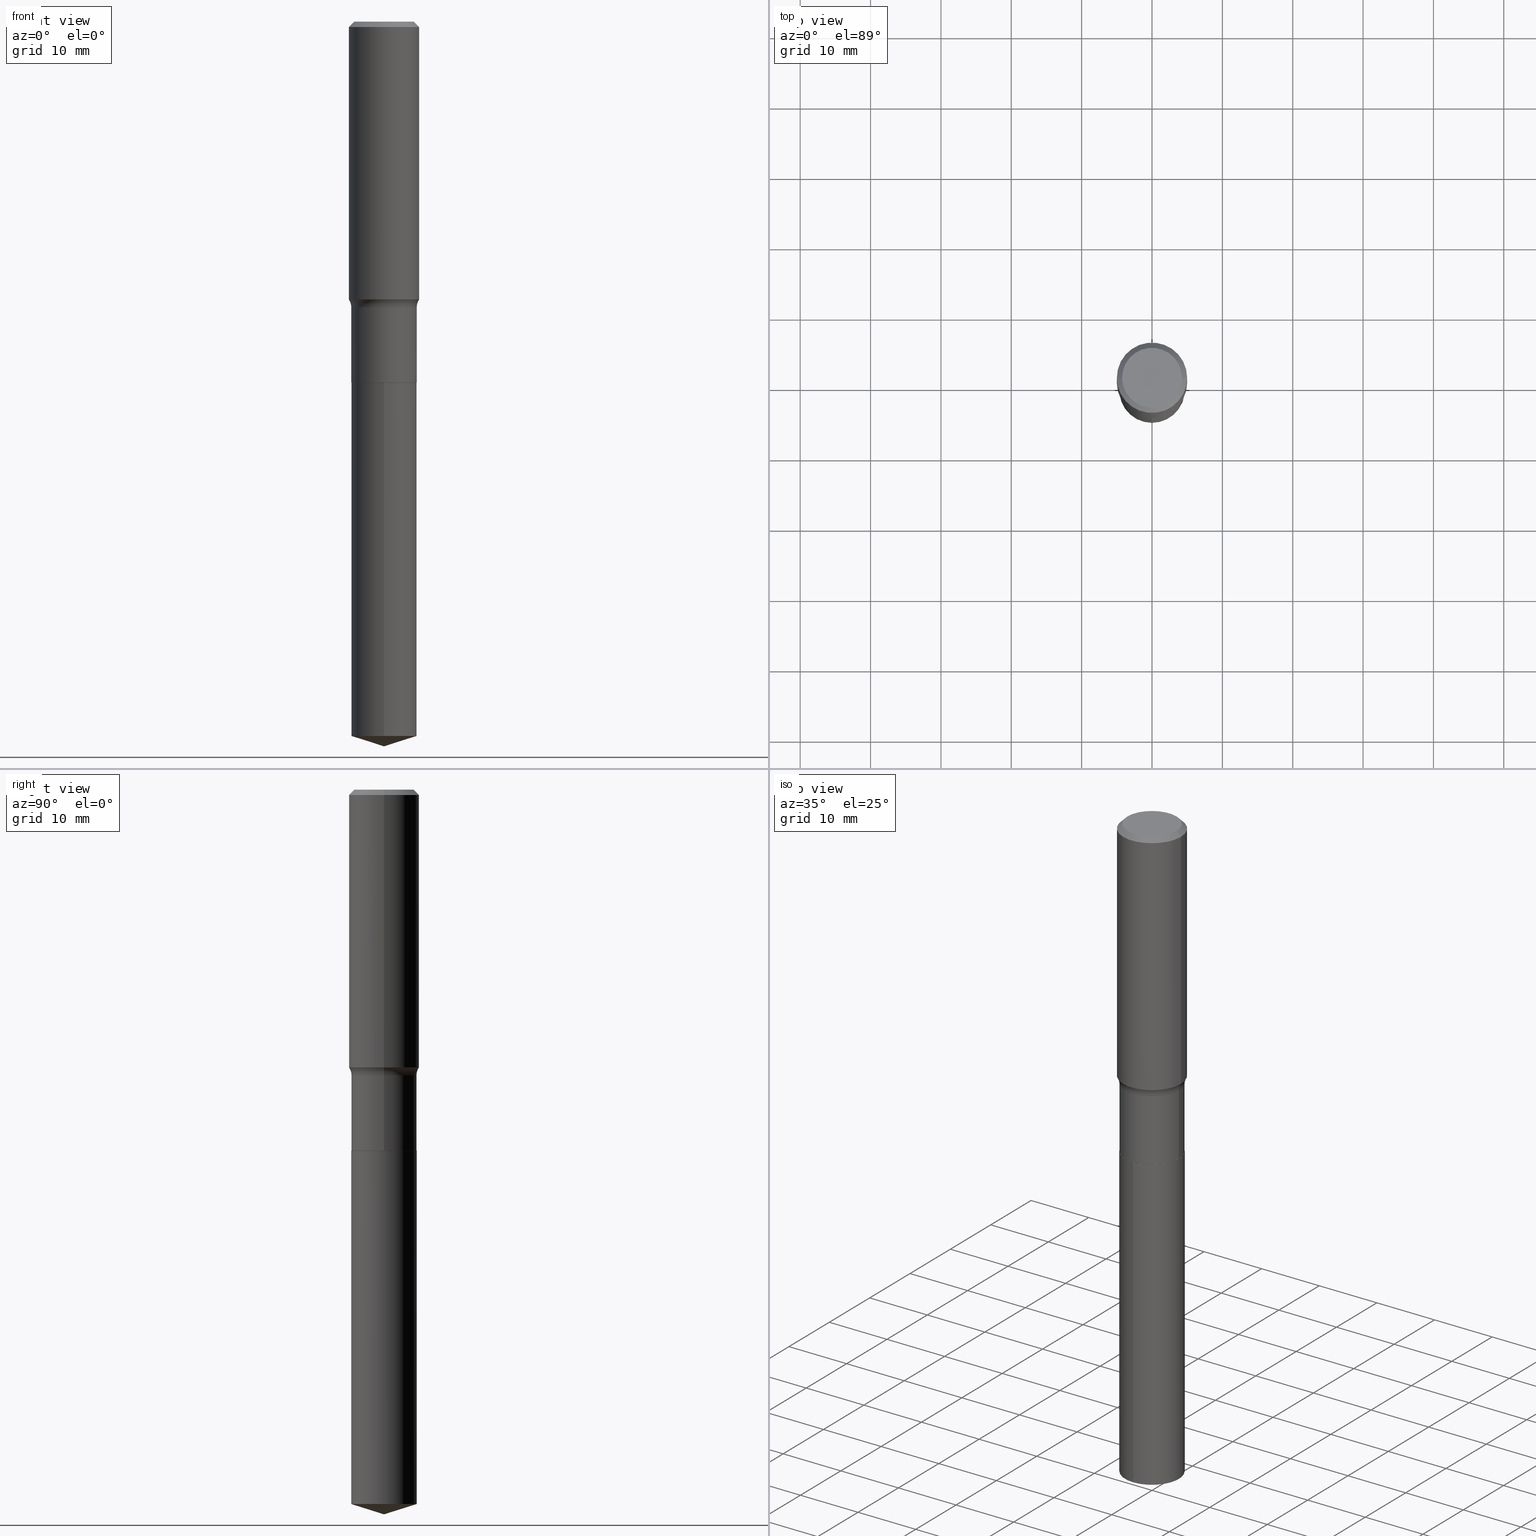
[diagram: canonical four-view strip — front | top / right | iso, engineering-drawing reading convention]
A machine part, canonical four-view strip (front | top / right | iso — engineering-drawing reading convention). The complete STEP part file that produces these views, byte-faithful:
ISO-10303-21;
HEADER;
FILE_DESCRIPTION (( 'STEP AP203' ),
    '1' );
FILE_NAME ('64167.STEP',
    '2024-04-19T15:26:06',
    ( '' ),
    ( '' ),
    'SwSTEP 2.0',
    'SolidWorks 2023',
    '' );
FILE_SCHEMA (( 'CONFIG_CONTROL_DESIGN' ));
ENDSEC;

DATA;
#1 = CARTESIAN_POINT ( 'NONE',  ( 0.000000000000000000, 0.000000000000000000, 0.000000000000000000 ) ) ;
#2 = CARTESIAN_POINT ( 'NONE',  ( 7.220858017463216492E-31, -1.030947152326917595E-16, -0.02952750000000022024 ) ) ;
#3 = EDGE_CURVE ( 'NONE', #156, #206, #22, .T. ) ;
#4 = CYLINDRICAL_SURFACE ( 'NONE', #317, 0.1830499999999999072 ) ;
#5 = CIRCLE ( 'NONE', #332, 0.1825499999999999623 ) ;
#6 = VECTOR ( 'NONE', #35, 39.37007874015748854 ) ;
#7 = FACE_OUTER_BOUND ( 'NONE', #96, .T. ) ;
#8 = ADVANCED_FACE ( 'NONE', ( #179 ), #221, .F. ) ;
#9 = FACE_OUTER_BOUND ( 'NONE', #380, .T. ) ;
#10 = ORIENTED_EDGE ( 'NONE', *, *, #298, .T. ) ;
#11 = DIRECTION ( 'NONE',  ( -2.445468806185136597E-29, 3.491481338843145583E-15, 1.000000000000000000 ) ) ;
#12 = CIRCLE ( 'NONE', #188, 0.1830499999999999905 ) ;
#13 = CC_DESIGN_APPROVAL ( #384, ( #478 ) ) ;
#14 = DIRECTION ( 'NONE',  ( 6.982962677686265922E-15, 1.000000000000000000, -3.491360137633217675E-15 ) ) ;
#15 = EDGE_LOOP ( 'NONE', ( #474, #165, #310, #342 ) ) ;
#16 = APPROVAL_STATUS ( 'not_yet_approved' ) ;
#17 = DIRECTION ( 'NONE',  ( -2.445468806185136597E-29, 3.491481338843145583E-15, 1.000000000000000000 ) ) ;
#18 = ORIENTED_EDGE ( 'NONE', *, *, #245, .F. ) ;
#19 = ADVANCED_FACE ( 'NONE', ( #407 ), #46, .T. ) ;
#20 = CARTESIAN_POINT ( 'NONE',  ( 0.1830499999999999072, -1.278231318150470470E-15, 8.925841588094455250E-30 ) ) ;
#21 = VERTEX_POINT ( 'NONE', #323 ) ;
#22 = CIRCLE ( 'NONE', #64, 0.07800000000000002764 ) ;
#23 = DIRECTION ( 'NONE',  ( 1.000000000000000000, -6.982962677686267499E-15, 0.000000000000000000 ) ) ;
#24 = APPROVAL_PERSON_ORGANIZATION ( #27, #384, #212 ) ;
#25 = ORIENTED_EDGE ( 'NONE', *, *, #196, .T. ) ;
#26 = PRODUCT ( '64167', '64167', '', ( #69 ) ) ;
#27 = PERSON_AND_ORGANIZATION ( #67, #182 ) ;
#28 = ORIENTED_EDGE ( 'NONE', *, *, #421, .T. ) ;
#29 = CARTESIAN_POINT ( 'NONE',  ( 0.1968500000000000527, -1.453583746094018101E-15, -0.02952750000000022024 ) ) ;
#30 = EDGE_LOOP ( 'NONE', ( #202, #319, #418, #391 ) ) ;
#31 = CIRCLE ( 'NONE', #286, 0.1830499999999999905 ) ;
#32 = DIRECTION ( 'NONE',  ( -1.000000000000000000, 7.105427357601001859E-15, 0.000000000000000000 ) ) ;
#33 = AXIS2_PLACEMENT_3D ( 'NONE', #238, #11, #242 ) ;
#34 = EDGE_CURVE ( 'NONE', #156, #411, #459, .T. ) ;
#35 = DIRECTION ( 'NONE',  ( 0.7071067811865454633, -7.319954787623246579E-15, -0.7071067811865493491 ) ) ;
#36 = CARTESIAN_POINT ( 'NONE',  ( 3.909326433567559047E-29, -5.581482068274652880E-15, -1.598600000000000021 ) ) ;
#37 = DIRECTION ( 'NONE',  ( -2.445553440537678294E-29, 3.491360137633217675E-15, 1.000000000000000000 ) ) ;
#38 = DIRECTION ( 'NONE',  ( 1.000000000000000000, -6.982962677686268288E-15, 4.883557194083112901E-29 ) ) ;
#39 = CIRCLE ( 'NONE', #359, 0.1968500000000001915 ) ;
#40 = LOCAL_TIME ( 11, 26, 6.000000000000000000, #466 ) ;
#41 = ADVANCED_BREP_SHAPE_REPRESENTATION ( '64167', ( #128, #132, #448 ), #47 ) ;
#42 = ADVANCED_FACE ( 'NONE', ( #149 ), #236, .T. ) ;
#43 = DIRECTION ( 'NONE',  ( 1.000000000000000000, -6.982962677686266711E-15, 4.876176775795935793E-29 ) ) ;
#44 = FACE_OUTER_BOUND ( 'NONE', #461, .T. ) ;
#45 = CARTESIAN_POINT ( 'NONE',  ( 3.909326433567559047E-29, -5.581482068274652880E-15, -1.598600000000000021 ) ) ;
#46 = CONICAL_SURFACE ( 'NONE', #367, 0.1825499999999999623, 0.7853981633975165577 ) ;
#47 =( GEOMETRIC_REPRESENTATION_CONTEXT ( 3 ) GLOBAL_UNCERTAINTY_ASSIGNED_CONTEXT ( ( #263 ) ) GLOBAL_UNIT_ASSIGNED_CONTEXT ( ( #327, #109, #249 ) ) REPRESENTATION_CONTEXT ( 'NONE', 'WORKASPACE' ) );
#48 = CARTESIAN_POINT ( 'NONE',  ( -0.1968500000000000527, -1.366251266267466202E-15, -0.02952750000000022024 ) ) ;
#49 = ORIENTED_EDGE ( 'NONE', *, *, #347, .F. ) ;
#50 = CARTESIAN_POINT ( 'NONE',  ( 0.000000000000000000, 0.000000000000000000, 0.000000000000000000 ) ) ;
#51 = CARTESIAN_POINT ( 'NONE',  ( 4.938868800971501707E-29, -7.051395711927616472E-15, -2.019600000000000062 ) ) ;
#52 = EDGE_LOOP ( 'NONE', ( #57, #134, #331 ) ) ;
#53 = CLOSED_SHELL ( 'NONE', ( #169, #404, #42, #395, #338 ) ) ;
#54 = APPROVAL_PERSON_ORGANIZATION ( #392, #389, #361 ) ;
#55 = FACE_OUTER_BOUND ( 'NONE', #344, .T. ) ;
#56 = EDGE_CURVE ( 'NONE', #127, #130, #12, .T. ) ;
#57 = ORIENTED_EDGE ( 'NONE', *, *, #196, .F. ) ;
#58 = DATE_AND_TIME ( #94, #40 ) ;
#59 = CARTESIAN_POINT ( 'NONE',  ( -8.636483868804549614E-28, 1.232970642567868093E-13, 35.31497874015747840 ) ) ;
#60 = ORIENTED_EDGE ( 'NONE', *, *, #107, .T. ) ;
#61 = LINE ( 'NONE', #270, #408 ) ;
#62 = VERTEX_POINT ( 'NONE', #70 ) ;
#63 = EDGE_CURVE ( 'NONE', #130, #127, #31, .T. ) ;
#64 = AXIS2_PLACEMENT_3D ( 'NONE', #409, #218, #253 ) ;
#65 = LENGTH_MEASURE_WITH_UNIT ( LENGTH_MEASURE( 0.02539999999999999897 ), #363 );
#66 = PRODUCT_DEFINITION_FORMATION_WITH_SPECIFIED_SOURCE ( 'ANY', '', #26, .NOT_KNOWN. ) ;
#67 = PERSON ( 'UNSPECIFIED', 'UNSPECIFIED', 'UNSPECIFIED', ('UNSPECIFIED'), ('UNSPECIFIED'), ('UNSPECIFIED') ) ;
#68 = ORIENTED_EDGE ( 'NONE', *, *, #84, .T. ) ;
#69 = MECHANICAL_CONTEXT ( 'NONE', #492, 'mechanical' ) ;
#70 = CARTESIAN_POINT ( 'NONE',  ( -0.1673224999999999851, 1.219954130253505460E-15, 4.096137381439757534E-18 ) ) ;
#71 = DIRECTION ( 'NONE',  ( -0.7071067811865454633, 2.468850131082235761E-15, -0.7071067811865493491 ) ) ;
#72 = APPROVAL_STATUS ( 'not_yet_approved' ) ;
#73 = TOROIDAL_SURFACE ( 'NONE', #325, 0.2610499999999999488, 0.07800000000000002764 ) ;
#74 = ORIENTED_EDGE ( 'NONE', *, *, #100, .T. ) ;
#75 = AXIS2_PLACEMENT_3D ( 'NONE', #59, #315, #473 ) ;
#76 = ORIENTED_EDGE ( 'NONE', *, *, #366, .F. ) ;
#77 = ORIENTED_EDGE ( 'NONE', *, *, #34, .T. ) ;
#78 = DIRECTION ( 'NONE',  ( 0.7071067811865957564, -2.468850131082761932E-15, 0.7071067811864992780 ) ) ;
#79 = CC_DESIGN_PERSON_AND_ORGANIZATION_ASSIGNMENT ( #487, #399, ( #26 ) ) ;
#80 = FACE_OUTER_BOUND ( 'NONE', #355, .T. ) ;
#81 = CC_DESIGN_APPROVAL ( #223, ( #66 ) ) ;
#82 = CARTESIAN_POINT ( 'NONE',  ( -0.1830499999999999072, 1.300648477808862731E-15, -9.004110682711601185E-30 ) ) ;
#83 = CYLINDRICAL_SURFACE ( 'NONE', #447, 0.1830499999999999905 ) ;
#84 = EDGE_CURVE ( 'NONE', #411, #303, #428, .T. ) ;
#85 = DIRECTION ( 'NONE',  ( -1.000000000000000000, 6.982962677686265922E-15, -4.876176775795935793E-29 ) ) ;
#86 = SECURITY_CLASSIFICATION ( '', '', #462 ) ;
#87 = CARTESIAN_POINT ( 'NONE',  ( 4.938868800971501707E-29, -7.051395711927616472E-15, -2.019600000000000062 ) ) ;
#88 = DIRECTION ( 'NONE',  ( -1.000000000000000000, 6.982962677686266711E-15, 0.000000000000000000 ) ) ;
#89 = ORIENTED_EDGE ( 'NONE', *, *, #90, .F. ) ;
#90 = EDGE_CURVE ( 'NONE', #437, #21, #145, .T. ) ;
#91 = DIRECTION ( 'NONE',  ( -2.445553440537678294E-29, 3.491360137633217675E-15, 1.000000000000000000 ) ) ;
#92 = EDGE_LOOP ( 'NONE', ( #472, #387, #10, #477 ) ) ;
#93 = VECTOR ( 'NONE', #305, 39.37007874015748854 ) ;
#94 = CALENDAR_DATE ( 2024, 19, 4 ) ;
#95 = DIRECTION ( 'NONE',  ( 1.000000000000000000, -6.982962677686269077E-15, 0.000000000000000000 ) ) ;
#96 = EDGE_LOOP ( 'NONE', ( #364, #49 ) ) ;
#97 = APPROVAL_ROLE ( '' ) ;
#98 = DIRECTION ( 'NONE',  ( -2.445468806185136597E-29, 3.491481338843145583E-15, 1.000000000000000000 ) ) ;
#99 = EDGE_LOOP ( 'NONE', ( #141, #68, #28, #120 ) ) ;
#100 = EDGE_CURVE ( 'NONE', #314, #151, #412, .T. ) ;
#101 = FACE_OUTER_BOUND ( 'NONE', #275, .T. ) ;
#102 = ORIENTED_EDGE ( 'NONE', *, *, #84, .F. ) ;
#103 = VECTOR ( 'NONE', #105, 39.37007874015748143 ) ;
#104 = APPLICATION_PROTOCOL_DEFINITION ( 'international standard', 'config_control_design', 1994, #492 ) ;
#105 = DIRECTION ( 'NONE',  ( -0.7071067811865957564, 7.493145998870527710E-15, 0.7071067811864992780 ) ) ;
#106 = CARTESIAN_POINT ( 'NONE',  ( 9.775646628240964967E-29, -1.395655387400157746E-14, -3.997384556695702695 ) ) ;
#107 = EDGE_CURVE ( 'NONE', #411, #156, #39, .T. ) ;
#108 = DIRECTION ( 'NONE',  ( -6.982962677686264344E-15, -1.000000000000000000, 2.984810700534567995E-15 ) ) ;
#109 =( NAMED_UNIT ( * ) PLANE_ANGLE_UNIT ( ) SI_UNIT ( $, .RADIAN. ) );
#110 = DIRECTION ( 'NONE',  ( -6.982962677686265922E-15, -1.000000000000000000, 3.500519750498715082E-15 ) ) ;
#111 = AXIS2_PLACEMENT_3D ( 'NONE', #51, #274, #14 ) ;
#112 = ORIENTED_EDGE ( 'NONE', *, *, #441, .F. ) ;
#113 = EDGE_CURVE ( 'NONE', #62, #279, #255, .T. ) ;
#114 = DIRECTION ( 'NONE',  ( 1.000000000000000000, -6.982962677686269077E-15, 0.000000000000000000 ) ) ;
#115 = CARTESIAN_POINT ( 'NONE',  ( -5.008488096090108951E-47, 7.150793614331948590E-33, 2.048068690724054183E-18 ) ) ;
#116 = VECTOR ( 'NONE', #382, 39.37007874015748143 ) ;
#117 = AXIS2_PLACEMENT_3D ( 'NONE', #422, #393, #203 ) ;
#118 = EDGE_CURVE ( 'NONE', #243, #183, #254, .T. ) ;
#119 = DIRECTION ( 'NONE',  ( 1.000000000000000000, -6.982962677686266711E-15, 4.876176775795935232E-29 ) ) ;
#120 = ORIENTED_EDGE ( 'NONE', *, *, #3, .F. ) ;
#121 = PRODUCT_RELATED_PRODUCT_CATEGORY ( 'detail', '', ( #26 ) ) ;
#122 = DIRECTION ( 'NONE',  ( -1.000000000000000000, 6.982962677686266711E-15, 0.000000000000000000 ) ) ;
#123 = DIRECTION ( 'NONE',  ( 2.445468806185136597E-29, -3.491481338843145583E-15, -1.000000000000000000 ) ) ;
#124 = VECTOR ( 'NONE', #377, 39.37007874015748143 ) ;
#125 = LINE ( 'NONE', #240, #375 ) ;
#126 = APPLICATION_CONTEXT ( 'configuration controlled 3d designs of mechanical parts and assemblies' ) ;
#127 = VERTEX_POINT ( 'NONE', #370 ) ;
#128 = MANIFOLD_SOLID_BREP ( 'Body-Move/Copy2[1]', #53 ) ;
#129 = CYLINDRICAL_SURFACE ( 'NONE', #483, 0.1830499999999999072 ) ;
#130 = VERTEX_POINT ( 'NONE', #185 ) ;
#131 = PERSON_AND_ORGANIZATION ( #67, #182 ) ;
#132 = MANIFOLD_SOLID_BREP ( 'Body-Move/Copy2[2]', #181 ) ;
#133 = LINE ( 'NONE', #20, #368 ) ;
#134 = ORIENTED_EDGE ( 'NONE', *, *, #378, .T. ) ;
#135 = AXIS2_PLACEMENT_3D ( 'NONE', #296, #371, #216 ) ;
#136 = AXIS2_PLACEMENT_3D ( 'NONE', #345, #98, #396 ) ;
#137 = ADVANCED_FACE ( 'NONE', ( #488 ), #294, .T. ) ;
#138 = DIRECTION ( 'NONE',  ( 2.445468806185136597E-29, -3.491481338843145583E-15, -1.000000000000000000 ) ) ;
#139 = ORIENTED_EDGE ( 'NONE', *, *, #429, .F. ) ;
#140 = DIRECTION ( 'NONE',  ( 1.000000000000000000, -6.982962677686267499E-15, 4.876294436782262290E-29 ) ) ;
#141 = ORIENTED_EDGE ( 'NONE', *, *, #107, .F. ) ;
#142 = DATE_TIME_ROLE ( 'creation_date' ) ;
#143 = DIRECTION ( 'NONE',  ( -2.445553440537678294E-29, 3.491360137633217675E-15, 1.000000000000000000 ) ) ;
#144 = CIRCLE ( 'NONE', #259, 0.1830499999999999350 ) ;
#145 = LINE ( 'NONE', #489, #103 ) ;
#146 = CC_DESIGN_PERSON_AND_ORGANIZATION_ASSIGNMENT ( #131, #166, ( #86 ) ) ;
#147 = CARTESIAN_POINT ( 'NONE',  ( -0.1968500000000000527, 1.271501487869850317E-15, -0.02952750000000022024 ) ) ;
#148 = COORDINATED_UNIVERSAL_TIME_OFFSET ( 5, 0, .BEHIND. ) ;
#149 = FACE_OUTER_BOUND ( 'NONE', #177, .T. ) ;
#150 = ADVANCED_FACE ( 'NONE', ( #335 ), #4, .T. ) ;
#151 = VERTEX_POINT ( 'NONE', #152 ) ;
#152 = CARTESIAN_POINT ( 'NONE',  ( 0.1830499999999999350, -8.327881289408665635E-15, -2.019099999999999895 ) ) ;
#153 = DIRECTION ( 'NONE',  ( 1.000000000000000000, -6.982962677686266711E-15, 0.000000000000000000 ) ) ;
#154 = DIRECTION ( 'NONE',  ( -2.445468806185136597E-29, 3.491481338843145583E-15, 1.000000000000000000 ) ) ;
#155 = AXIS2_PLACEMENT_3D ( 'NONE', #460, #17, #95 ) ;
#156 = VERTEX_POINT ( 'NONE', #417 ) ;
#157 = DIRECTION ( 'NONE',  ( -2.445553440537678294E-29, 3.491360137633217675E-15, 1.000000000000000000 ) ) ;
#158 = DIRECTION ( 'NONE',  ( -2.445468806185136597E-29, 3.491481338843145583E-15, 1.000000000000000000 ) ) ;
#159 = ORIENTED_EDGE ( 'NONE', *, *, #410, .F. ) ;
#160 = DIRECTION ( 'NONE',  ( -2.445468806185136597E-29, 3.491481338843145583E-15, 1.000000000000000000 ) ) ;
#161 = ADVANCED_FACE ( 'NONE', ( #9 ), #300, .T. ) ;
#162 = AXIS2_PLACEMENT_3D ( 'NONE', #222, #376, #43 ) ;
#163 = AXIS2_PLACEMENT_3D ( 'NONE', #306, #390, #140 ) ;
#164 = DIRECTION ( 'NONE',  ( -2.445468806185136597E-29, 3.491481338843145583E-15, 1.000000000000000000 ) ) ;
#165 = ORIENTED_EDGE ( 'NONE', *, *, #273, .T. ) ;
#166 = PERSON_AND_ORGANIZATION_ROLE ( 'classification_officer' ) ;
#167 = CARTESIAN_POINT ( 'NONE',  ( 0.1673224999999999851, -1.300749711163072594E-15, 4.096137381456741925E-18 ) ) ;
#168 = ORIENTED_EDGE ( 'NONE', *, *, #347, .T. ) ;
#169 = ADVANCED_FACE ( 'NONE', ( #266 ), #83, .T. ) ;
#170 = DIRECTION ( 'NONE',  ( -2.445468806185136597E-29, 3.491481338843145583E-15, 1.000000000000000000 ) ) ;
#171 = ORIENTED_EDGE ( 'NONE', *, *, #113, .F. ) ;
#172 = AXIS2_PLACEMENT_3D ( 'NONE', #262, #123, #122 ) ;
#173 = PERSON_AND_ORGANIZATION ( #67, #182 ) ;
#174 = DIRECTION ( 'NONE',  ( 6.776566513254254982E-15, 0.9537169507482285979, 0.3007057995042680121 ) ) ;
#175 = ORIENTED_EDGE ( 'NONE', *, *, #421, .F. ) ;
#176 = PERSON_AND_ORGANIZATION ( #67, #182 ) ;
#177 = EDGE_LOOP ( 'NONE', ( #187, #25, #112 ) ) ;
#178 = DATE_AND_TIME ( #442, #301 ) ;
#179 = FACE_OUTER_BOUND ( 'NONE', #99, .T. ) ;
#180 = ADVANCED_FACE ( 'NONE', ( #7 ), #302, .F. ) ;
#181 = CLOSED_SHELL ( 'NONE', ( #19, #161, #217, #8, #282, #150, #265, #137, #445, #252, #180, #356 ) ) ;
#182 = ORGANIZATION ( 'UNSPECIFIED', 'UNSPECIFIED', '' ) ;
#183 = VERTEX_POINT ( 'NONE', #297 ) ;
#184 = DIRECTION ( 'NONE',  ( 1.000000000000000000, 0.000000000000000000, 0.000000000000000000 ) ) ;
#185 = CARTESIAN_POINT ( 'NONE',  ( -1.278231318150421166E-15, -0.1830500000000070127, -2.019599999999999618 ) ) ;
#186 = EDGE_CURVE ( 'NONE', #206, #303, #482, .T. ) ;
#187 = ORIENTED_EDGE ( 'NONE', *, *, #378, .F. ) ;
#188 = AXIS2_PLACEMENT_3D ( 'NONE', #214, #37, #449 ) ;
#189 = CARTESIAN_POINT ( 'NONE',  ( 9.916621901647553676E-29, -1.415830405004360408E-14, -4.055100000000000371 ) ) ;
#190 = DIRECTION ( 'NONE',  ( 1.000000000000000000, -6.982962677686264344E-15, 0.000000000000000000 ) ) ;
#191 = EDGE_CURVE ( 'NONE', #151, #21, #490, .T. ) ;
#192 = DIRECTION ( 'NONE',  ( -2.438088387897960049E-29, 3.491481338843145188E-15, 1.000000000000000000 ) ) ;
#193 = AXIS2_PLACEMENT_3D ( 'NONE', #330, #256, #32 ) ;
#194 = CIRCLE ( 'NONE', #348, 0.1673224999999999851 ) ;
#195 = CARTESIAN_POINT ( 'NONE',  ( 4.938868800971501707E-29, -7.051395711927616472E-15, -2.019600000000000062 ) ) ;
#196 = EDGE_CURVE ( 'NONE', #365, #243, #299, .T. ) ;
#197 = DIRECTION ( 'NONE',  ( -2.445468806185136597E-29, 3.491481338843145583E-15, 1.000000000000000000 ) ) ;
#198 = PLANE ( 'NONE',  #111 ) ;
#199 = ORIENTED_EDGE ( 'NONE', *, *, #230, .T. ) ;
#200 = AXIS2_PLACEMENT_3D ( 'NONE', #354, #138, #88 ) ;
#201 = FACE_OUTER_BOUND ( 'NONE', #92, .T. ) ;
#202 = ORIENTED_EDGE ( 'NONE', *, *, #191, .T. ) ;
#203 = DIRECTION ( 'NONE',  ( -6.982962677686264344E-15, -1.000000000000000000, 2.984810700534567995E-15 ) ) ;
#204 = ORIENTED_EDGE ( 'NONE', *, *, #454, .F. ) ;
#205 = FACE_OUTER_BOUND ( 'NONE', #30, .T. ) ;
#206 = VERTEX_POINT ( 'NONE', #304 ) ;
#207 = AXIS2_PLACEMENT_3D ( 'NONE', #446, #158, #419 ) ;
#208 = AXIS2_PLACEMENT_3D ( 'NONE', #309, #91, #234 ) ;
#209 = DIRECTION ( 'NONE',  ( -2.445468806185136877E-29, 3.491481338843145188E-15, 1.000000000000000000 ) ) ;
#210 = VERTEX_POINT ( 'NONE', #413 ) ;
#211 = CC_DESIGN_PERSON_AND_ORGANIZATION_ASSIGNMENT ( #176, #320, ( #478 ) ) ;
#212 = APPROVAL_ROLE ( '' ) ;
#213 = ORIENTED_EDGE ( 'NONE', *, *, #458, .T. ) ;
#214 = CARTESIAN_POINT ( 'NONE',  ( 4.938868800971501707E-29, -7.051395711927616472E-15, -2.019600000000000062 ) ) ;
#215 = CIRCLE ( 'NONE', #117, 0.1830499999999999905 ) ;
#216 = DIRECTION ( 'NONE',  ( 1.000000000000000000, -6.982962677686266711E-15, 0.000000000000000000 ) ) ;
#217 = ADVANCED_FACE ( 'NONE', ( #80 ), #224, .T. ) ;
#218 = DIRECTION ( 'NONE',  ( -6.982962677686266711E-15, -1.000000000000000000, 3.491481338843145583E-15 ) ) ;
#219 = EDGE_LOOP ( 'NONE', ( #394, #400, #372, #175 ) ) ;
#220 = EDGE_LOOP ( 'NONE', ( #426, #233 ) ) ;
#221 = TOROIDAL_SURFACE ( 'NONE', #452, 0.2610499999999999488, 0.07800000000000002764 ) ;
#222 = CARTESIAN_POINT ( 'NONE',  ( 0.000000000000000000, 0.000000000000000000, 0.000000000000000000 ) ) ;
#223 = APPROVAL ( #16, 'UNSPECIFIED' ) ;
#224 = CYLINDRICAL_SURFACE ( 'NONE', #162, 0.1968500000000001082 ) ;
#225 = FACE_OUTER_BOUND ( 'NONE', #220, .T. ) ;
#226 = ORIENTED_EDGE ( 'NONE', *, *, #290, .F. ) ;
#227 = LINE ( 'NONE', #337, #116 ) ;
#228 = AXIS2_PLACEMENT_3D ( 'NONE', #231, #154, #114 ) ;
#229 = CONICAL_SURFACE ( 'NONE', #75, 124.8659371009146923, 1.265363707695890794 ) ;
#230 = EDGE_CURVE ( 'NONE', #314, #437, #5, .T. ) ;
#231 = CARTESIAN_POINT ( 'NONE',  ( 3.909326433567559047E-29, -5.581482068274652880E-15, -1.598600000000000021 ) ) ;
#232 = DIRECTION ( 'NONE',  ( 1.000000000000000000, -6.982962677686266711E-15, 4.876176775795935232E-29 ) ) ;
#233 = ORIENTED_EDGE ( 'NONE', *, *, #410, .T. ) ;
#234 = DIRECTION ( 'NONE',  ( -6.982962677686264344E-15, -1.000000000000000000, 2.984810700534567995E-15 ) ) ;
#235 = ORIENTED_EDGE ( 'NONE', *, *, #3, .T. ) ;
#236 = CONICAL_SURFACE ( 'NONE', #307, 124.8659371009146923, 1.265363707695890794 ) ;
#237 = CALENDAR_DATE ( 2024, 19, 4 ) ;
#238 = CARTESIAN_POINT ( 'NONE',  ( 4.938868800971501707E-29, -7.051395711927616472E-15, -2.019600000000000062 ) ) ;
#239 = ORIENTED_EDGE ( 'NONE', *, *, #458, .F. ) ;
#240 = CARTESIAN_POINT ( 'NONE',  ( -1.278231318150421166E-15, -0.1830500000000070127, -2.019599999999999618 ) ) ;
#241 = ORIENTED_EDGE ( 'NONE', *, *, #486, .F. ) ;
#242 = DIRECTION ( 'NONE',  ( 1.000000000000000000, -6.982962677686264344E-15, 0.000000000000000000 ) ) ;
#243 = VERTEX_POINT ( 'NONE', #336 ) ;
#244 = VECTOR ( 'NONE', #71, 39.37007874015748854 ) ;
#245 = EDGE_CURVE ( 'NONE', #210, #279, #440, .T. ) ;
#246 = VECTOR ( 'NONE', #209, 39.37007874015748143 ) ;
#247 = CARTESIAN_POINT ( 'NONE',  ( 0.1968500000000001082, -1.374596203102542397E-15, 9.598753983154305062E-30 ) ) ;
#248 = ORIENTED_EDGE ( 'NONE', *, *, #34, .F. ) ;
#249 =( NAMED_UNIT ( * ) SI_UNIT ( $, .STERADIAN. ) SOLID_ANGLE_UNIT ( ) );
#250 = DIRECTION ( 'NONE',  ( -2.445553440537678294E-29, 3.491360137633217675E-15, 1.000000000000000000 ) ) ;
#251 = DIRECTION ( 'NONE',  ( 0.000000000000000000, 0.000000000000000000, 1.000000000000000000 ) ) ;
#252 = ADVANCED_FACE ( 'NONE', ( #225 ), #379, .F. ) ;
#253 = DIRECTION ( 'NONE',  ( 1.000000000000000000, -6.982962677686268288E-15, 0.000000000000000000 ) ) ;
#254 = CIRCLE ( 'NONE', #414, 0.1830499999999999905 ) ;
#255 = LINE ( 'NONE', #147, #244 ) ;
#256 = DIRECTION ( 'NONE',  ( 7.105427357601001859E-15, 1.000000000000000000, -3.491481338843145583E-15 ) ) ;
#257 = DIRECTION ( 'NONE',  ( -2.445468806185136597E-29, 3.491481338843145583E-15, 1.000000000000000000 ) ) ;
#258 = EDGE_CURVE ( 'NONE', #21, #303, #415, .T. ) ;
#259 = AXIS2_PLACEMENT_3D ( 'NONE', #425, #170, #23 ) ;
#260 = DIRECTION ( 'NONE',  ( 2.438088387897960049E-29, -3.491481338843145188E-15, -1.000000000000000000 ) ) ;
#261 = CONICAL_SURFACE ( 'NONE', #200, 0.1968500000000000527, 0.7853981633974456145 ) ;
#262 = CARTESIAN_POINT ( 'NONE',  ( 7.220858017463216492E-31, -1.030947152326917595E-16, -0.02952750000000022024 ) ) ;
#263 = UNCERTAINTY_MEASURE_WITH_UNIT (LENGTH_MEASURE( 1.000000000000000082E-05 ), #327, 'distance_accuracy_value', 'NONE');
#264 = DIRECTION ( 'NONE',  ( 1.000000000000000000, -6.982962677686268288E-15, 4.883557194083112901E-29 ) ) ;
#265 = ADVANCED_FACE ( 'NONE', ( #44 ), #73, .F. ) ;
#266 = FACE_OUTER_BOUND ( 'NONE', #15, .T. ) ;
#267 = LOCAL_TIME ( 11, 26, 6.000000000000000000, #369 ) ;
#268 = CARTESIAN_POINT ( 'NONE',  ( -0.1825499999999999623, -5.751650720623443241E-15, -2.019600000000000062 ) ) ;
#269 = ORIENTED_EDGE ( 'NONE', *, *, #113, .T. ) ;
#270 = CARTESIAN_POINT ( 'NONE',  ( 9.916966754389835881E-29, -1.415781449411646117E-14, -4.055100000000000371 ) ) ;
#271 = ORIENTED_EDGE ( 'NONE', *, *, #100, .F. ) ;
#272 = PERSON_AND_ORGANIZATION_ROLE ( 'design_supplier' ) ;
#273 = EDGE_CURVE ( 'NONE', #183, #127, #227, .T. ) ;
#274 = DIRECTION ( 'NONE',  ( 2.445553440537678014E-29, -3.491360137633217675E-15, -1.000000000000000000 ) ) ;
#275 = EDGE_LOOP ( 'NONE', ( #239, #139, #269, #464 ) ) ;
#276 = AXIS2_PLACEMENT_3D ( 'NONE', #2, #340, #153 ) ;
#277 = AXIS2_PLACEMENT_3D ( 'NONE', #430, #164, #318 ) ;
#278 = CARTESIAN_POINT ( 'NONE',  ( -0.1830499999999999072, -5.014917541957560996E-15, -1.598600000000000021 ) ) ;
#279 = VERTEX_POINT ( 'NONE', #48 ) ;
#280 = CARTESIAN_POINT ( 'NONE',  ( -1.001697619218021790E-46, 1.430158722866389718E-32, 4.096137381448108366E-18 ) ) ;
#281 = ORIENTED_EDGE ( 'NONE', *, *, #186, .T. ) ;
#282 = ADVANCED_FACE ( 'NONE', ( #205 ), #129, .T. ) ;
#283 = COORDINATED_UNIVERSAL_TIME_OFFSET ( 5, 0, .BEHIND. ) ;
#284 = DATE_AND_TIME ( #293, #267 ) ;
#285 = DIRECTION ( 'NONE',  ( -2.445468806185136597E-29, 3.491481338843145583E-15, 1.000000000000000000 ) ) ;
#286 = AXIS2_PLACEMENT_3D ( 'NONE', #403, #439, #481 ) ;
#287 = CONICAL_SURFACE ( 'NONE', #33, 0.1825499999999999623, 0.7853981633975165577 ) ;
#288 = APPLICATION_PROTOCOL_DEFINITION ( 'international standard', 'config_control_design', 1994, #126 ) ;
#289 = CARTESIAN_POINT ( 'NONE',  ( 4.938868800971501707E-29, -7.051395711927616472E-15, -2.019600000000000062 ) ) ;
#290 = EDGE_CURVE ( 'NONE', #21, #151, #144, .T. ) ;
#291 = CARTESIAN_POINT ( 'NONE',  ( 0.000000000000000000, 0.000000000000000000, 0.000000000000000000 ) ) ;
#292 = CARTESIAN_POINT ( 'NONE',  ( -8.636483868804549614E-28, 1.232970642567868093E-13, 35.31497874015747840 ) ) ;
#293 = CALENDAR_DATE ( 2024, 19, 4 ) ;
#294 = CYLINDRICAL_SURFACE ( 'NONE', #207, 0.1968500000000001082 ) ;
#295 = LOCAL_TIME ( 11, 26, 6.000000000000000000, #283 ) ;
#296 = CARTESIAN_POINT ( 'NONE',  ( 3.800995753672628738E-29, -5.426814567989757082E-15, -1.554301467292922290 ) ) ;
#297 = CARTESIAN_POINT ( 'NONE',  ( 1.300648477808960747E-15, 0.1830499999999859739, -3.997384556695703139 ) ) ;
#298 = EDGE_CURVE ( 'NONE', #243, #130, #125, .T. ) ;
#299 = LINE ( 'NONE', #189, #93 ) ;
#300 = CONICAL_SURFACE ( 'NONE', #172, 0.1968500000000000527, 0.7853981633974456145 ) ;
#301 = LOCAL_TIME ( 11, 26, 6.000000000000000000, #148 ) ;
#302 = PLANE ( 'NONE',  #374 ) ;
#303 = VERTEX_POINT ( 'NONE', #278 ) ;
#304 = CARTESIAN_POINT ( 'NONE',  ( 0.1830499999999999072, -6.859713386425123547E-15, -1.598600000000000021 ) ) ;
#305 = DIRECTION ( 'NONE',  ( -6.659769872151629722E-15, -0.9537169507482263775, 0.3007057995042746179 ) ) ;
#306 = CARTESIAN_POINT ( 'NONE',  ( -1.001697619218021790E-46, 1.430158722866389718E-32, 4.096137381448108366E-18 ) ) ;
#307 = AXIS2_PLACEMENT_3D ( 'NONE', #292, #143, #110 ) ;
#308 = PERSON_AND_ORGANIZATION ( #67, #182 ) ;
#309 = CARTESIAN_POINT ( 'NONE',  ( 4.938868800971501707E-29, -7.051395711927616472E-15, -2.019600000000000062 ) ) ;
#310 = ORIENTED_EDGE ( 'NONE', *, *, #63, .F. ) ;
#311 = CC_DESIGN_DATE_AND_TIME_ASSIGNMENT ( #284, #142, ( #478 ) ) ;
#312 = COORDINATED_UNIVERSAL_TIME_OFFSET ( 5, 0, .BEHIND. ) ;
#313 = CARTESIAN_POINT ( 'NONE',  ( 9.916963756724339510E-29, -1.415781449411646117E-14, -4.055100000000000371 ) ) ;
#314 = VERTEX_POINT ( 'NONE', #471 ) ;
#315 = DIRECTION ( 'NONE',  ( -2.445553440537678294E-29, 3.491360137633217675E-15, 1.000000000000000000 ) ) ;
#316 = ORIENTED_EDGE ( 'NONE', *, *, #191, .F. ) ;
#317 = AXIS2_PLACEMENT_3D ( 'NONE', #1, #457, #119 ) ;
#318 = DIRECTION ( 'NONE',  ( 1.000000000000000000, -6.982962677686266711E-15, 0.000000000000000000 ) ) ;
#319 = ORIENTED_EDGE ( 'NONE', *, *, #258, .T. ) ;
#320 = PERSON_AND_ORGANIZATION_ROLE ( 'creator' ) ;
#321 = CARTESIAN_POINT ( 'NONE',  ( 3.800995753672628738E-29, -5.426814567989757082E-15, -1.554301467292922290 ) ) ;
#322 = LINE ( 'NONE', #402, #381 ) ;
#323 = CARTESIAN_POINT ( 'NONE',  ( -0.1830499999999999350, -5.014917541957560996E-15, -2.019099999999999895 ) ) ;
#324 = DESIGN_CONTEXT ( 'detailed design', #126, 'design' ) ;
#325 = AXIS2_PLACEMENT_3D ( 'NONE', #45, #456, #264 ) ;
#326 = CIRCLE ( 'NONE', #136, 0.1825499999999999623 ) ;
#327 =( CONVERSION_BASED_UNIT ( 'INCH', #65 ) LENGTH_UNIT ( ) NAMED_UNIT ( #485 ) );
#328 = CC_DESIGN_PERSON_AND_ORGANIZATION_ASSIGNMENT ( #308, #388, ( #66 ) ) ;
#329 = DIRECTION ( 'NONE',  ( 1.000000000000000000, -6.982962677686264344E-15, 0.000000000000000000 ) ) ;
#330 = CARTESIAN_POINT ( 'NONE',  ( -0.2610499999999999488, -3.726610256572912103E-15, -1.598600000000000021 ) ) ;
#331 = ORIENTED_EDGE ( 'NONE', *, *, #118, .F. ) ;
#332 = AXIS2_PLACEMENT_3D ( 'NONE', #195, #455, #190 ) ;
#333 = APPROVAL_PERSON_ORGANIZATION ( #475, #223, #97 ) ;
#334 = EDGE_CURVE ( 'NONE', #151, #206, #133, .T. ) ;
#335 = FACE_OUTER_BOUND ( 'NONE', #219, .T. ) ;
#336 = CARTESIAN_POINT ( 'NONE',  ( -1.278231318150372651E-15, -0.1830500000000139238, -3.997384556695702251 ) ) ;
#337 = CARTESIAN_POINT ( 'NONE',  ( 1.300648477808912429E-15, 0.1830499999999929406, -2.019600000000000506 ) ) ;
#338 = ADVANCED_FACE ( 'NONE', ( #55 ), #198, .F. ) ;
#339 = CIRCLE ( 'NONE', #155, 0.1830499999999999072 ) ;
#340 = DIRECTION ( 'NONE',  ( -2.445468806185136597E-29, 3.491481338843145583E-15, 1.000000000000000000 ) ) ;
#341 = DIRECTION ( 'NONE',  ( 1.000000000000000000, -6.982962677686267499E-15, 0.000000000000000000 ) ) ;
#342 = ORIENTED_EDGE ( 'NONE', *, *, #298, .F. ) ;
#343 = DIRECTION ( 'NONE',  ( -2.445553440537678294E-29, 3.491360137633217675E-15, 1.000000000000000000 ) ) ;
#344 = EDGE_LOOP ( 'NONE', ( #349, #432 ) ) ;
#345 = CARTESIAN_POINT ( 'NONE',  ( 4.938868800971501707E-29, -7.051395711927616472E-15, -2.019600000000000062 ) ) ;
#346 = AXIS2_PLACEMENT_3D ( 'NONE', #115, #260, #85 ) ;
#347 = EDGE_CURVE ( 'NONE', #437, #314, #326, .T. ) ;
#348 = AXIS2_PLACEMENT_3D ( 'NONE', #280, #197, #436 ) ;
#349 = ORIENTED_EDGE ( 'NONE', *, *, #63, .T. ) ;
#350 = DATE_AND_TIME ( #237, #453 ) ;
#351 = CYLINDRICAL_SURFACE ( 'NONE', #208, 0.1830499999999999905 ) ;
#352 = VERTEX_POINT ( 'NONE', #167 ) ;
#353 = APPROVAL_DATE_TIME ( #58, #389 ) ;
#354 = CARTESIAN_POINT ( 'NONE',  ( 7.220858017463216492E-31, -1.030947152326917595E-16, -0.02952750000000022024 ) ) ;
#355 = EDGE_LOOP ( 'NONE', ( #77, #435, #18, #204 ) ) ;
#356 = ADVANCED_FACE ( 'NONE', ( #357 ), #287, .T. ) ;
#357 = FACE_OUTER_BOUND ( 'NONE', #358, .T. ) ;
#358 = EDGE_LOOP ( 'NONE', ( #89, #168, #74, #226 ) ) ;
#359 = AXIS2_PLACEMENT_3D ( 'NONE', #321, #484, #443 ) ;
#360 = CC_DESIGN_SECURITY_CLASSIFICATION ( #86, ( #66 ) ) ;
#361 = APPROVAL_ROLE ( '' ) ;
#362 = EDGE_LOOP ( 'NONE', ( #241, #60, #468, #76 ) ) ;
#363 =( LENGTH_UNIT ( ) NAMED_UNIT ( * ) SI_UNIT ( $, .METRE. ) );
#364 = ORIENTED_EDGE ( 'NONE', *, *, #230, .F. ) ;
#365 = VERTEX_POINT ( 'NONE', #313 ) ;
#366 = EDGE_CURVE ( 'NONE', #279, #210, #431, .T. ) ;
#367 = AXIS2_PLACEMENT_3D ( 'NONE', #289, #444, #329 ) ;
#368 = VECTOR ( 'NONE', #434, 39.37007874015748143 ) ;
#369 = COORDINATED_UNIVERSAL_TIME_OFFSET ( 5, 0, .BEHIND. ) ;
#370 = CARTESIAN_POINT ( 'NONE',  ( 1.300648477808961339E-15, 0.1830499999999929406, -2.019600000000000506 ) ) ;
#371 = DIRECTION ( 'NONE',  ( -2.445468806185136597E-29, 3.491481338843145583E-15, 1.000000000000000000 ) ) ;
#372 = ORIENTED_EDGE ( 'NONE', *, *, #334, .T. ) ;
#373 = ORIENTED_EDGE ( 'NONE', *, *, #245, .T. ) ;
#374 = AXIS2_PLACEMENT_3D ( 'NONE', #450, #192, #420 ) ;
#375 = VECTOR ( 'NONE', #343, 39.37007874015748143 ) ;
#376 = DIRECTION ( 'NONE',  ( -2.445468806185136597E-29, 3.491481338843145583E-15, 1.000000000000000000 ) ) ;
#377 = DIRECTION ( 'NONE',  ( -2.445468806185136877E-29, 3.491481338843145188E-15, 1.000000000000000000 ) ) ;
#378 = EDGE_CURVE ( 'NONE', #365, #183, #61, .T. ) ;
#379 = PLANE ( 'NONE',  #346 ) ;
#380 = EDGE_LOOP ( 'NONE', ( #159, #213, #373, #171 ) ) ;
#381 = VECTOR ( 'NONE', #405, 39.37007874015748143 ) ;
#382 = DIRECTION ( 'NONE',  ( -2.445553440537678294E-29, 3.491360137633217675E-15, 1.000000000000000000 ) ) ;
#383 = CARTESIAN_POINT ( 'NONE',  ( 4.937646066568409466E-29, -7.049649971258195757E-15, -2.019099999999999895 ) ) ;
#384 = APPROVAL ( #72, 'UNSPECIFIED' ) ;
#385 = PRODUCT_DEFINITION_SHAPE ( 'NONE', 'NONE',  #478 ) ;
#386 = LINE ( 'NONE', #247, #246 ) ;
#387 = ORIENTED_EDGE ( 'NONE', *, *, #441, .T. ) ;
#388 = PERSON_AND_ORGANIZATION_ROLE ( 'creator' ) ;
#389 = APPROVAL ( #433, 'UNSPECIFIED' ) ;
#390 = DIRECTION ( 'NONE',  ( -2.445468806185136597E-29, 3.491481338843145583E-15, 1.000000000000000000 ) ) ;
#391 = ORIENTED_EDGE ( 'NONE', *, *, #334, .F. ) ;
#392 = PERSON_AND_ORGANIZATION ( #67, #182 ) ;
#393 = DIRECTION ( 'NONE',  ( -2.445553440537678294E-29, 3.491360137633217675E-15, 1.000000000000000000 ) ) ;
#394 = ORIENTED_EDGE ( 'NONE', *, *, #258, .F. ) ;
#395 = ADVANCED_FACE ( 'NONE', ( #201 ), #351, .T. ) ;
#396 = DIRECTION ( 'NONE',  ( 1.000000000000000000, -6.982962677686264344E-15, 0.000000000000000000 ) ) ;
#397 = EDGE_LOOP ( 'NONE', ( #199, #423, #316, #271 ) ) ;
#398 = DATE_AND_TIME ( #438, #295 ) ;
#399 = PERSON_AND_ORGANIZATION_ROLE ( 'design_owner' ) ;
#400 = ORIENTED_EDGE ( 'NONE', *, *, #290, .T. ) ;
#401 = CC_DESIGN_APPROVAL ( #389, ( #86 ) ) ;
#402 = CARTESIAN_POINT ( 'NONE',  ( -0.1968500000000001082, 1.398703375343757985E-15, -9.682923725166787881E-30 ) ) ;
#403 = CARTESIAN_POINT ( 'NONE',  ( 4.938868800971501707E-29, -7.051395711927616472E-15, -2.019600000000000062 ) ) ;
#404 = ADVANCED_FACE ( 'NONE', ( #463 ), #229, .T. ) ;
#405 = DIRECTION ( 'NONE',  ( -2.445468806185136877E-29, 3.491481338843145188E-15, 1.000000000000000000 ) ) ;
#406 = CARTESIAN_POINT ( 'NONE',  ( 0.1825499999999999623, -8.326135548739243343E-15, -2.019600000000000062 ) ) ;
#407 = FACE_OUTER_BOUND ( 'NONE', #397, .T. ) ;
#408 = VECTOR ( 'NONE', #174, 39.37007874015748854 ) ;
#409 = CARTESIAN_POINT ( 'NONE',  ( 0.2610499999999999488, -7.404384475284651593E-15, -1.598600000000000021 ) ) ;
#410 = EDGE_CURVE ( 'NONE', #352, #62, #491, .T. ) ;
#411 = VERTEX_POINT ( 'NONE', #467 ) ;
#412 = LINE ( 'NONE', #406, #470 ) ;
#413 = CARTESIAN_POINT ( 'NONE',  ( 0.1968500000000000527, -1.477690918335233688E-15, -0.02952750000000022024 ) ) ;
#414 = AXIS2_PLACEMENT_3D ( 'NONE', #106, #250, #108 ) ;
#415 = LINE ( 'NONE', #82, #124 ) ;
#416 = CC_DESIGN_PERSON_AND_ORGANIZATION_ASSIGNMENT ( #173, #272, ( #66 ) ) ;
#417 = CARTESIAN_POINT ( 'NONE',  ( 0.1968500000000001915, -6.801410771092300268E-15, -1.554301467292922290 ) ) ;
#418 = ORIENTED_EDGE ( 'NONE', *, *, #186, .F. ) ;
#419 = DIRECTION ( 'NONE',  ( 1.000000000000000000, -6.982962677686266711E-15, 4.876176775795935793E-29 ) ) ;
#420 = DIRECTION ( 'NONE',  ( 1.000000000000000000, -6.982962677686265922E-15, 4.876176775795935793E-29 ) ) ;
#421 = EDGE_CURVE ( 'NONE', #303, #206, #339, .T. ) ;
#422 = CARTESIAN_POINT ( 'NONE',  ( 9.775646628240964967E-29, -1.395655387400157746E-14, -3.997384556695702695 ) ) ;
#423 = ORIENTED_EDGE ( 'NONE', *, *, #90, .T. ) ;
#424 = APPROVAL_DATE_TIME ( #398, #223 ) ;
#425 = CARTESIAN_POINT ( 'NONE',  ( 4.937646066568409466E-29, -7.049649971258195757E-15, -2.019099999999999895 ) ) ;
#426 = ORIENTED_EDGE ( 'NONE', *, *, #429, .T. ) ;
#427 = DATE_TIME_ROLE ( 'classification_date' ) ;
#428 = CIRCLE ( 'NONE', #193, 0.07800000000000002764 ) ;
#429 = EDGE_CURVE ( 'NONE', #62, #352, #194, .T. ) ;
#430 = CARTESIAN_POINT ( 'NONE',  ( 7.220858017463216492E-31, -1.030947152326917595E-16, -0.02952750000000022024 ) ) ;
#431 = CIRCLE ( 'NONE', #277, 0.1968500000000000527 ) ;
#432 = ORIENTED_EDGE ( 'NONE', *, *, #56, .T. ) ;
#433 = APPROVAL_STATUS ( 'not_yet_approved' ) ;
#434 = DIRECTION ( 'NONE',  ( -2.445468806185136877E-29, 3.491481338843145188E-15, 1.000000000000000000 ) ) ;
#435 = ORIENTED_EDGE ( 'NONE', *, *, #486, .T. ) ;
#436 = DIRECTION ( 'NONE',  ( 1.000000000000000000, -6.982962677686267499E-15, 4.876294436782262290E-29 ) ) ;
#437 = VERTEX_POINT ( 'NONE', #268 ) ;
#438 = CALENDAR_DATE ( 2024, 19, 4 ) ;
#439 = DIRECTION ( 'NONE',  ( -2.445553440537678294E-29, 3.491360137633217675E-15, 1.000000000000000000 ) ) ;
#440 = CIRCLE ( 'NONE', #276, 0.1968500000000000527 ) ;
#441 = EDGE_CURVE ( 'NONE', #183, #243, #215, .T. ) ;
#442 = CALENDAR_DATE ( 2024, 19, 4 ) ;
#443 = DIRECTION ( 'NONE',  ( 1.000000000000000000, -6.982962677686266711E-15, 0.000000000000000000 ) ) ;
#444 = DIRECTION ( 'NONE',  ( -2.445468806185136597E-29, 3.491481338843145583E-15, 1.000000000000000000 ) ) ;
#445 = ADVANCED_FACE ( 'NONE', ( #101 ), #261, .T. ) ;
#446 = CARTESIAN_POINT ( 'NONE',  ( 0.000000000000000000, 0.000000000000000000, 0.000000000000000000 ) ) ;
#447 = AXIS2_PLACEMENT_3D ( 'NONE', #87, #157, #451 ) ;
#448 = AXIS2_PLACEMENT_3D ( 'NONE', #291, #251, #184 ) ;
#449 = DIRECTION ( 'NONE',  ( -6.982962677686264344E-15, -1.000000000000000000, 2.984810700534567995E-15 ) ) ;
#450 = CARTESIAN_POINT ( 'NONE',  ( 4.938868800971501707E-29, -7.051395711927616472E-15, -2.019600000000000062 ) ) ;
#451 = DIRECTION ( 'NONE',  ( -6.982962677686264344E-15, -1.000000000000000000, 2.984810700534567995E-15 ) ) ;
#452 = AXIS2_PLACEMENT_3D ( 'NONE', #36, #285, #38 ) ;
#453 = LOCAL_TIME ( 11, 26, 6.000000000000000000, #312 ) ;
#454 = EDGE_CURVE ( 'NONE', #156, #210, #386, .T. ) ;
#455 = DIRECTION ( 'NONE',  ( -2.445468806185136597E-29, 3.491481338843145583E-15, 1.000000000000000000 ) ) ;
#456 = DIRECTION ( 'NONE',  ( -2.445468806185136597E-29, 3.491481338843145583E-15, 1.000000000000000000 ) ) ;
#457 = DIRECTION ( 'NONE',  ( -2.445468806185136597E-29, 3.491481338843145583E-15, 1.000000000000000000 ) ) ;
#458 = EDGE_CURVE ( 'NONE', #352, #210, #476, .T. ) ;
#459 = CIRCLE ( 'NONE', #135, 0.1968500000000001915 ) ;
#460 = CARTESIAN_POINT ( 'NONE',  ( 3.909326433567559047E-29, -5.581482068274652880E-15, -1.598600000000000021 ) ) ;
#461 = EDGE_LOOP ( 'NONE', ( #102, #248, #235, #281 ) ) ;
#462 = SECURITY_CLASSIFICATION_LEVEL ( 'unclassified' ) ;
#463 = FACE_OUTER_BOUND ( 'NONE', #52, .T. ) ;
#464 = ORIENTED_EDGE ( 'NONE', *, *, #366, .T. ) ;
#465 = CC_DESIGN_DATE_AND_TIME_ASSIGNMENT ( #350, #427, ( #86 ) ) ;
#466 = COORDINATED_UNIVERSAL_TIME_OFFSET ( 5, 0, .BEHIND. ) ;
#467 = CARTESIAN_POINT ( 'NONE',  ( -0.1968500000000001915, -4.028111192645999295E-15, -1.554301467292922290 ) ) ;
#468 = ORIENTED_EDGE ( 'NONE', *, *, #454, .T. ) ;
#469 = SHAPE_DEFINITION_REPRESENTATION ( #385, #41 ) ;
#470 = VECTOR ( 'NONE', #78, 39.37007874015748143 ) ;
#471 = CARTESIAN_POINT ( 'NONE',  ( 0.1825499999999999623, -8.326135548739243343E-15, -2.019600000000000062 ) ) ;
#472 = ORIENTED_EDGE ( 'NONE', *, *, #273, .F. ) ;
#473 = DIRECTION ( 'NONE',  ( -6.982962677686265922E-15, -1.000000000000000000, 3.500519750498715082E-15 ) ) ;
#474 = ORIENTED_EDGE ( 'NONE', *, *, #118, .T. ) ;
#475 = PERSON_AND_ORGANIZATION ( #67, #182 ) ;
#476 = LINE ( 'NONE', #29, #6 ) ;
#477 = ORIENTED_EDGE ( 'NONE', *, *, #56, .F. ) ;
#478 = PRODUCT_DEFINITION ( 'UNKNOWN', '', #66, #324 ) ;
#479 = APPROVAL_DATE_TIME ( #178, #384 ) ;
#480 = AXIS2_PLACEMENT_3D ( 'NONE', #383, #257, #341 ) ;
#481 = DIRECTION ( 'NONE',  ( -6.982962677686264344E-15, -1.000000000000000000, 2.984810700534567995E-15 ) ) ;
#482 = CIRCLE ( 'NONE', #228, 0.1830499999999999072 ) ;
#483 = AXIS2_PLACEMENT_3D ( 'NONE', #50, #160, #232 ) ;
#484 = DIRECTION ( 'NONE',  ( -2.445468806185136597E-29, 3.491481338843145583E-15, 1.000000000000000000 ) ) ;
#485 = DIMENSIONAL_EXPONENTS ( 1.000000000000000000, 0.000000000000000000, 0.000000000000000000, 0.000000000000000000, 0.000000000000000000, 0.000000000000000000, 0.000000000000000000 ) ;
#486 = EDGE_CURVE ( 'NONE', #411, #279, #322, .T. ) ;
#487 = PERSON_AND_ORGANIZATION ( #67, #182 ) ;
#488 = FACE_OUTER_BOUND ( 'NONE', #362, .T. ) ;
#489 = CARTESIAN_POINT ( 'NONE',  ( -0.1825499999999999623, -5.754299947797554442E-15, -2.019600000000000062 ) ) ;
#490 = CIRCLE ( 'NONE', #480, 0.1830499999999999350 ) ;
#491 = CIRCLE ( 'NONE', #163, 0.1673224999999999851 ) ;
#492 = APPLICATION_CONTEXT ( 'configuration controlled 3d designs of mechanical parts and assemblies' ) ;
ENDSEC;
END-ISO-10303-21;
